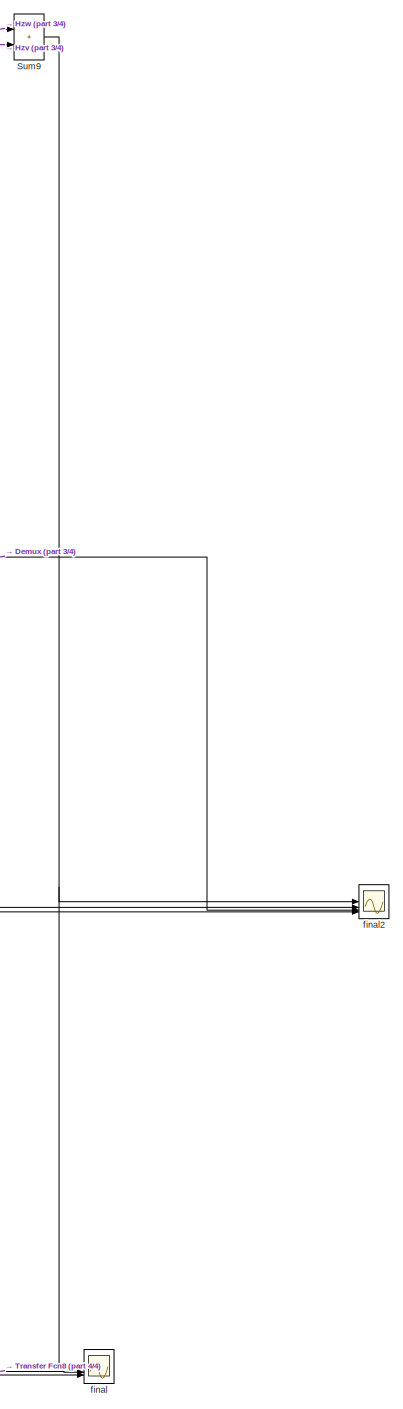
[diagram: root canvas - part 1/4, right side, full height]
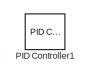
[diagram: root canvas - part 2/4, top left region]
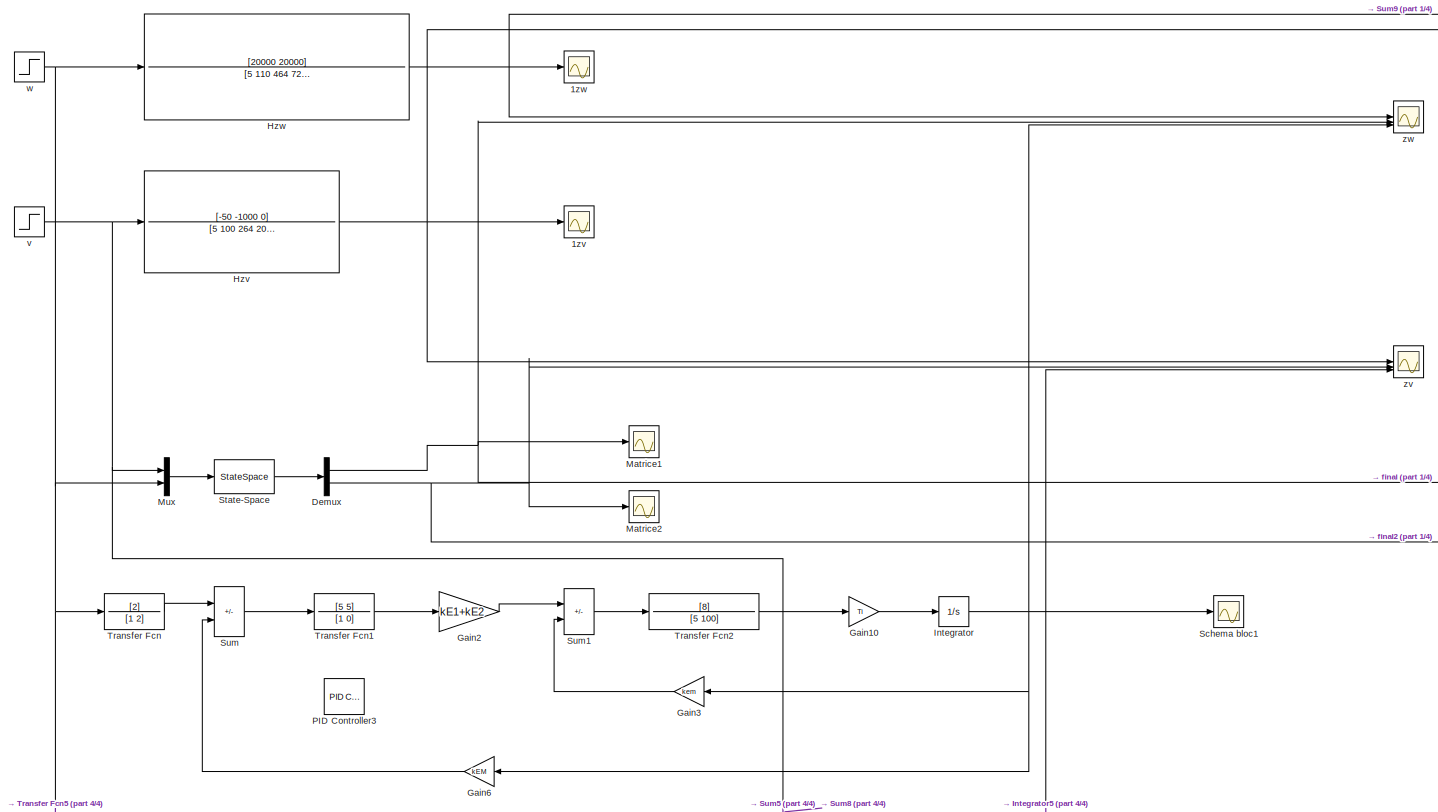
[diagram: root canvas - part 3/4, top center region]
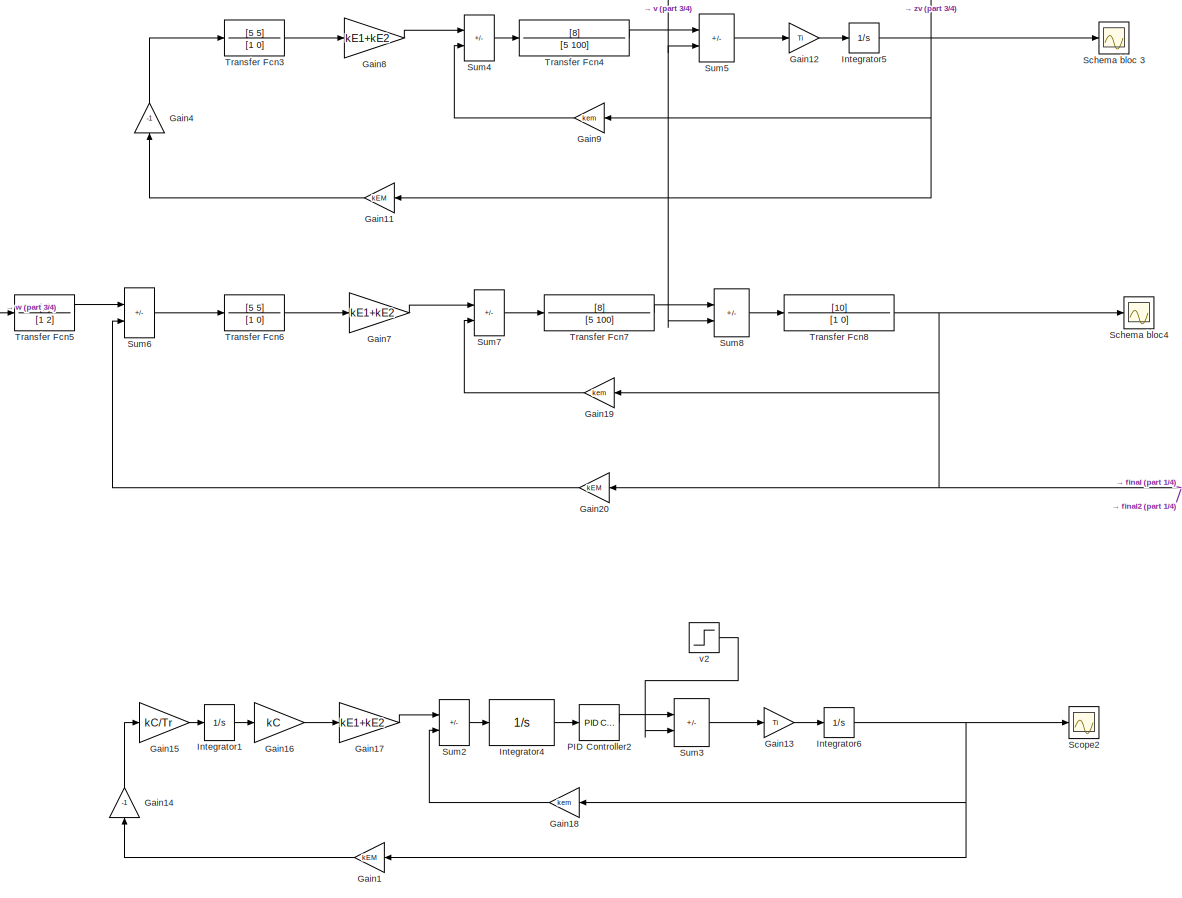
[diagram: root canvas - part 4/4, bottom center region]
MODEL slx_b3255073d19f
KIND model
CONFIG AbsTol = auto
CONFIG EnableMultiTasking = off
CONFIG FixedStep = auto
CONFIG MaxStep = auto
CONFIG MinStep = auto
CONFIG RelTol = 1e-3
CONFIG SampleTimeConstraint = Unconstrained
CONFIG SolverName = VariableStepAuto
CONFIG StartTime = 0.0
CONFIG StopTime = 50
BLOCK [Scope] 1zv
  Floating = off
  NumInputPorts = 1
  ScopeSpecificationString = Simulink.scopes.TimeScopeBlockCfg('CurrentConfiguration', extmgr.ConfigurationSet(extmgr.Configuration('Core','General UI',true),extmgr.Configuration('Core','Source UI',true),extmgr.Configuration('Sources','WiredSimulink',true,'DataLoggingVariableName','ScopeData1'),extmgr.Configuration('Visuals','Time Domain',true,'SerializedDisplays',{struct('MinYLimReal','-3.23624','MaxYLimReal','0.35961','YLab...<+1480ch>
BLOCK [Scope] 1zw
  Floating = off
  NumInputPorts = 1
  ScopeSpecificationString = Simulink.scopes.TimeScopeBlockCfg('CurrentConfiguration', extmgr.ConfigurationSet(extmgr.Configuration('Core','General UI',true),extmgr.Configuration('Core','Source UI',true),extmgr.Configuration('Sources','WiredSimulink',true),extmgr.Configuration('Visuals','Time Domain',true,'SerializedDisplays',{struct('MinYLimReal','-31.98765','MaxYLimReal','287.88886','YLabelReal','','MinYLimMag','0.00000','M...<+1451ch>
BLOCK [Demux] Demux
  Outputs = 2
BLOCK [Gain] Gain1
  Gain = kEM
  NameLocation = top
BLOCK [Gain] Gain10
  Gain = Ti
BLOCK [Gain] Gain11
  Gain = kEM
  NameLocation = top
BLOCK [Gain] Gain12
  Gain = Ti
BLOCK [Gain] Gain13
  Gain = Ti
BLOCK [Gain] Gain14
  Gain = -1
  NameLocation = right
BLOCK [Gain] Gain15
  Gain = kC/Tr
BLOCK [Gain] Gain16
  Gain = kC
BLOCK [Gain] Gain17
  Gain = kE1+kE2
BLOCK [Gain] Gain18
  Gain = kem
  NameLocation = top
BLOCK [Gain] Gain19
  Gain = kem
  NameLocation = top
BLOCK [Gain] Gain2
  Gain = kE1+kE2
BLOCK [Gain] Gain20
  Gain = kEM
  NameLocation = top
BLOCK [Gain] Gain3
  Gain = kem
  NameLocation = top
BLOCK [Gain] Gain4
  Gain = -1
  NameLocation = right
BLOCK [Gain] Gain6
  Gain = kEM
  NameLocation = top
BLOCK [Gain] Gain7
  Gain = kE1+kE2
BLOCK [Gain] Gain8
  Gain = kE1+kE2
BLOCK [Gain] Gain9
  Gain = kem
  NameLocation = top
BLOCK [TransferFcn] Hzv
  Denominator = [5 100 264 200]
  Numerator = [-50 -1000 0]
BLOCK [TransferFcn] Hzw
  Denominator = [5 110 464 728 400]
  Numerator = [20000 20000]
BLOCK [Integrator] Integrator
BLOCK [Integrator] Integrator1
  InitialCondition = 1
BLOCK [Integrator] Integrator4
  InitialCondition = 1
BLOCK [Integrator] Integrator5
BLOCK [Integrator] Integrator6
BLOCK [Scope] Matrice1
  Floating = off
  NumInputPorts = 1
  ScopeSpecificationString = Simulink.scopes.TimeScopeBlockCfg('CurrentConfiguration', extmgr.ConfigurationSet(extmgr.Configuration('Core','General UI',true),extmgr.Configuration('Core','Source UI',true),extmgr.Configuration('Sources','WiredSimulink',true,'DataLoggingVariableName','ScopeData5'),extmgr.Configuration('Visuals','Time Domain',true,'SerializedDisplays',{struct('MinYLimReal','-31.49769','MaxYLimReal','283.47924','Y...<+1494ch>
BLOCK [Scope] Matrice2
  Floating = off
  NumInputPorts = 1
  ScopeSpecificationString = Simulink.scopes.TimeScopeBlockCfg('CurrentConfiguration', extmgr.ConfigurationSet(extmgr.Configuration('Core','General UI',true),extmgr.Configuration('Core','Source UI',true),extmgr.Configuration('Sources','WiredSimulink',true,'DataLoggingVariableName','ScopeData4'),extmgr.Configuration('Visuals','Time Domain',true,'SerializedDisplays',{struct('MinYLimReal','-1.17902','MaxYLimReal','10.61121','YLa...<+1488ch>
BLOCK [Mux] Mux
  DisplayOption = bar
  Inputs = 2
BLOCK [Reference] PID Controller1  REF=slpidlib/PID Controller
  LibrarySourceBlock = simulink/Continuous/PID Controller
  SourceBlock = slpidlib/PID Controller
  SourceType = PID 1dof
BLOCK [Reference] PID Controller2  REF=slpidlib/PID Controller
  LibrarySourceBlock = simulink/Continuous/PID Controller
  SourceBlock = slpidlib/PID Controller
  SourceType = PID 1dof
BLOCK [Reference] PID Controller3  REF=slpidlib/PID Controller
  LibrarySourceBlock = simulink/Continuous/PID Controller
  SourceBlock = slpidlib/PID Controller
  SourceType = PID 1dof
BLOCK [Scope] Schema bloc 3
  Floating = off
  NumInputPorts = 1
  ScopeSpecificationString = Simulink.scopes.TimeScopeBlockCfg('CurrentConfiguration', extmgr.ConfigurationSet(extmgr.Configuration('Core','General UI',true),extmgr.Configuration('Core','Source UI',true),extmgr.Configuration('Sources','WiredSimulink',true,'DataLoggingVariableName','ScopeData1'),extmgr.Configuration('Visuals','Time Domain',true,'SerializedDisplays',{struct('MinYLimReal','-32.37887','MaxYLimReal','3.5979','YLab...<+1490ch>
BLOCK [Scope] Schema bloc1
  Floating = off
  NumInputPorts = 1
  ScopeSpecificationString = Simulink.scopes.TimeScopeBlockCfg('CurrentConfiguration', extmgr.ConfigurationSet(extmgr.Configuration('Core','General UI',true),extmgr.Configuration('Core','Source UI',true),extmgr.Configuration('Sources','WiredSimulink',true,'DataLoggingVariableName','ScopeData6'),extmgr.Configuration('Visuals','Time Domain',true,'SerializedDisplays',{struct('MinYLimReal','-38.38498','MaxYLimReal','345.46483','Y...<+1496ch>
BLOCK [Scope] Schema bloc4
  Floating = off
  NumInputPorts = 1
  ScopeSpecificationString = Simulink.scopes.TimeScopeBlockCfg('CurrentConfiguration', extmgr.ConfigurationSet(extmgr.Configuration('Core','General UI',true),extmgr.Configuration('Core','Source UI',true),extmgr.Configuration('Sources','WiredSimulink',true,'DataLoggingVariableName','ScopeData1'),extmgr.Configuration('Visuals','Time Domain',true,'SerializedDisplays',{struct('MinYLimReal','-31.98765','MaxYLimReal','287.88882','Y...<+1499ch>
BLOCK [Scope] Scope2
  Floating = off
  NumInputPorts = 1
  ScopeSpecificationString = Simulink.scopes.TimeScopeBlockCfg('CurrentConfiguration', extmgr.ConfigurationSet(extmgr.Configuration('Core','General UI',true),extmgr.Configuration('Core','Source UI',true),extmgr.Configuration('Sources','WiredSimulink',true,'DataLoggingVariableName','ScopeData2'),extmgr.Configuration('Visuals','Time Domain',true,'SerializedDisplays',{struct('MinYLimReal','-107.71334','MaxYLimReal','63.50487','Y...<+1489ch>
BLOCK [StateSpace] State-Space
  A = A
  B = B
  C = C
  D = D
  InitialCondition = 0
BLOCK [Sum] Sum
  IconShape = rectangular
  Inputs = |+-
BLOCK [Sum] Sum1
  IconShape = rectangular
  Inputs = |+-
BLOCK [Sum] Sum2
  IconShape = rectangular
  Inputs = |+-
BLOCK [Sum] Sum3
  IconShape = rectangular
  Inputs = |+-
BLOCK [Sum] Sum4
  IconShape = rectangular
  Inputs = |+-
BLOCK [Sum] Sum5
  IconShape = rectangular
  Inputs = |+-
BLOCK [Sum] Sum6
  IconShape = rectangular
  Inputs = |+-
BLOCK [Sum] Sum7
  IconShape = rectangular
  Inputs = |+-
BLOCK [Sum] Sum8
  IconShape = rectangular
  Inputs = |+-
BLOCK [Sum] Sum9
  IconShape = rectangular
  Inputs = |++
BLOCK [TransferFcn] Transfer Fcn
  Denominator = [1 2]
  Numerator = [2]
BLOCK [TransferFcn] Transfer Fcn1
  Denominator = [1 0]
  Numerator = [5 5]
BLOCK [TransferFcn] Transfer Fcn2
  Denominator = [5 100]
  Numerator = [8]
BLOCK [TransferFcn] Transfer Fcn3
  Denominator = [1 0]
  Numerator = [5 5]
BLOCK [TransferFcn] Transfer Fcn4
  Denominator = [5 100]
  Numerator = [8]
BLOCK [TransferFcn] Transfer Fcn5
  Denominator = [1 2]
  Numerator = [2]
BLOCK [TransferFcn] Transfer Fcn6
  Denominator = [1 0]
  Numerator = [5 5]
BLOCK [TransferFcn] Transfer Fcn7
  Denominator = [5 100]
  Numerator = [8]
BLOCK [TransferFcn] Transfer Fcn8
  Denominator = [1 0]
  Numerator = [10]
BLOCK [Scope] final
  Floating = off
  NumInputPorts = 3
  ScopeSpecificationString = Simulink.scopes.TimeScopeBlockCfg('CurrentConfiguration', extmgr.ConfigurationSet(extmgr.Configuration('Core','General UI',true),extmgr.Configuration('Core','Source UI',true),extmgr.Configuration('Sources','WiredSimulink',true,'DataLoggingVariableName','ScopeData1'),extmgr.Configuration('Visuals','Time Domain',true,'SerializedDisplays',{struct('MinYLimReal','-31.98765','MaxYLimReal','287.88886','Y...<+1694ch>
BLOCK [Scope] final2
  Floating = off
  NumInputPorts = 4
  ScopeSpecificationString = Simulink.scopes.TimeScopeBlockCfg('CurrentConfiguration', extmgr.ConfigurationSet(extmgr.Configuration('Core','General UI',true),extmgr.Configuration('Core','Source UI',true),extmgr.Configuration('Sources','WiredSimulink',true,'DataLoggingVariableName','ScopeData1'),extmgr.Configuration('Visuals','Time Domain',true,'SerializedDisplays',{struct('MinYLimReal','-31.98765','MaxYLimReal','287.88886','Y...<+1700ch>
BLOCK [Step] v
  SampleTime = 0
  Time = 25
BLOCK [Step] v2
  After = 10
  SampleTime = 0
  Time = 5
BLOCK [Step] w
  After = 5
  SampleTime = 0
  Time = 0
BLOCK [Scope] zv
  Floating = off
  NumInputPorts = 3
  ScopeSpecificationString = Simulink.scopes.TimeScopeBlockCfg('CurrentConfiguration', extmgr.ConfigurationSet(extmgr.Configuration('Core','General UI',true),extmgr.Configuration('Core','Source UI',true),extmgr.Configuration('Sources','WiredSimulink',true,'DataLoggingVariableName','ScopeData3'),extmgr.Configuration('Visuals','Time Domain',true,'SerializedDisplays',{struct('MinYLimReal','-3.23624','MaxYLimReal','0.35961','YLab...<+1663ch>
BLOCK [Scope] zw
  Floating = off
  NumInputPorts = 3
  ScopeSpecificationString = Simulink.scopes.TimeScopeBlockCfg('CurrentConfiguration', extmgr.ConfigurationSet(extmgr.Configuration('Core','General UI',true),extmgr.Configuration('Core','Source UI',true),extmgr.Configuration('Sources','WiredSimulink',true,'DataLoggingVariableName','ScopeData2'),extmgr.Configuration('Visuals','Time Domain',true,'SerializedDisplays',{struct('MinYLimReal','-37.24803','MaxYLimReal','335.23229','Y...<+1621ch>
NET Demux:1 -> Matrice1:1, final2:2, final:3, zw:2
NET Demux:2 -> Matrice2:1, final2:3, zv:2
LINE Gain10:1 -> Integrator:1
LINE Gain11:1 -> Gain4:1
LINE Gain12:1 -> Integrator5:1
LINE Gain13:1 -> Integrator6:1
LINE Gain14:1 -> Gain15:1
LINE Gain15:1 -> Integrator1:1
LINE Gain16:1 -> Gain17:1
LINE Gain17:1 -> Sum2:1
LINE Gain18:1 -> Sum2:2
LINE Gain19:1 -> Sum7:2
LINE Gain1:1 -> Gain14:1
LINE Gain20:1 -> Sum6:2
LINE Gain2:1 -> Sum1:1
LINE Gain3:1 -> Sum1:2
LINE Gain4:1 -> Transfer Fcn3:1
LINE Gain6:1 -> Sum:2
LINE Gain7:1 -> Sum7:1
LINE Gain8:1 -> Sum4:1
LINE Gain9:1 -> Sum4:2
NET Hzv:1 -> 1zv:1, Sum9:2, zv:1
NET Hzw:1 -> 1zw:1, Sum9:1, zw:1
LINE Integrator1:1 -> Gain16:1
LINE Integrator4:1 -> PID Controller2:1
NET Integrator5:1 -> Gain11:1, Gain9:1, Schema bloc 3:1, zv:3
NET Integrator6:1 -> Gain18:1, Gain1:1, Scope2:1
NET Integrator:1 -> Gain3:1, Gain6:1, Schema bloc1:1, zw:3
LINE Mux:1 -> State-Space:1
LINE PID Controller2:1 -> Sum3:1
LINE State-Space:1 -> Demux:1
LINE Sum1:1 -> Transfer Fcn2:1
LINE Sum2:1 -> Integrator4:1
LINE Sum3:1 -> Gain13:1
LINE Sum4:1 -> Transfer Fcn4:1
LINE Sum5:1 -> Gain12:1
LINE Sum6:1 -> Transfer Fcn6:1
LINE Sum7:1 -> Transfer Fcn7:1
LINE Sum8:1 -> Transfer Fcn8:1
NET Sum9:1 -> final2:1, final:1
LINE Sum:1 -> Transfer Fcn1:1
LINE Transfer Fcn1:1 -> Gain2:1
LINE Transfer Fcn2:1 -> Gain10:1
LINE Transfer Fcn3:1 -> Gain8:1
LINE Transfer Fcn4:1 -> Sum5:1
LINE Transfer Fcn5:1 -> Sum6:1
LINE Transfer Fcn6:1 -> Gain7:1
LINE Transfer Fcn7:1 -> Sum8:1
NET Transfer Fcn8:1 -> Gain19:1, Gain20:1, Schema bloc4:1, final2:4, final:2
LINE Transfer Fcn:1 -> Sum:1
LINE v2:1 -> Sum3:2
NET v:1 -> Hzv:1, Mux:1, Sum5:2, Sum8:2
NET w:1 -> Hzw:1, Mux:2, Transfer Fcn5:1, Transfer Fcn:1
note: NET lines group one-source signal fan-out (src -> all destinations, sorted); 1:1 wires keep LINE
